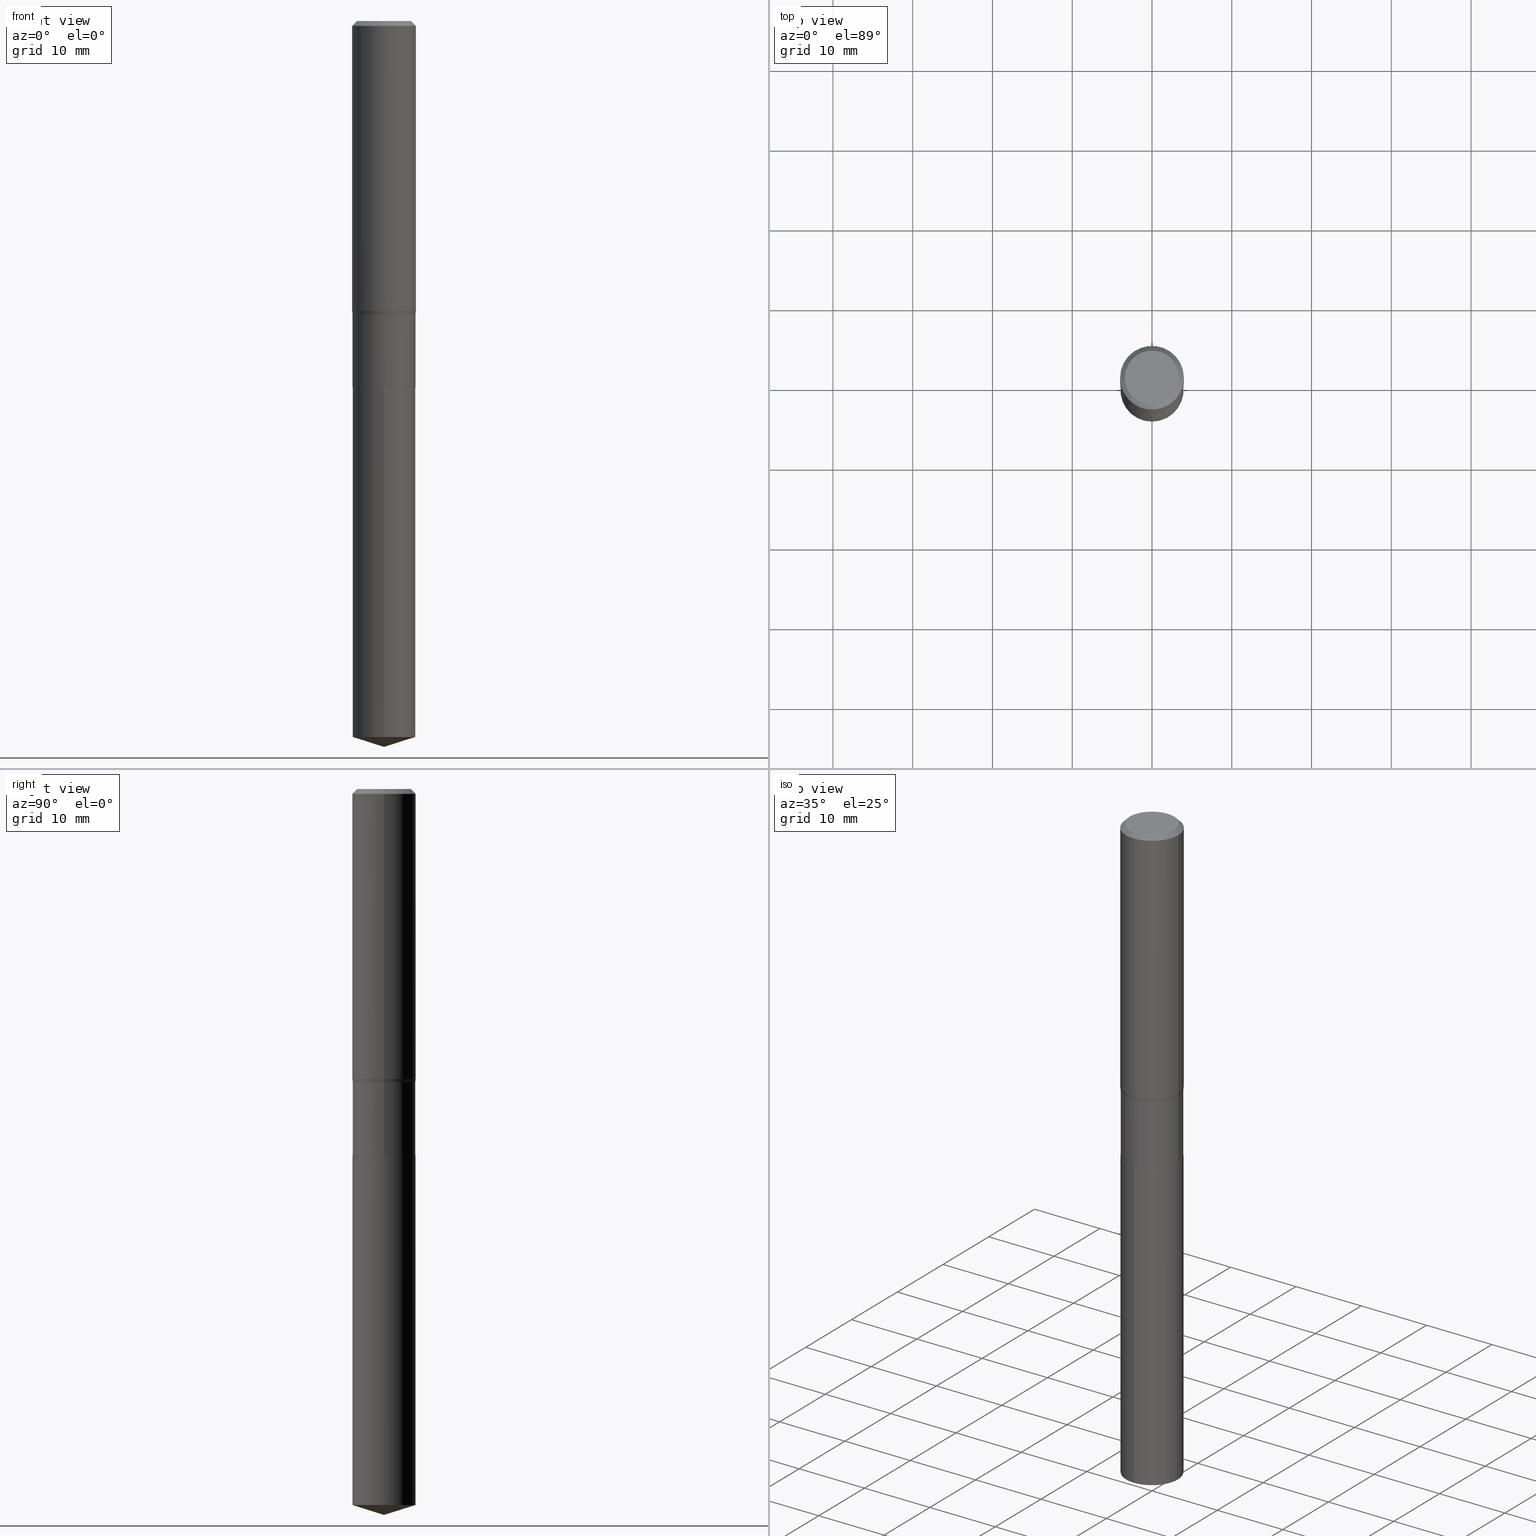
[diagram: canonical four-view strip — front | top / right | iso, engineering-drawing reading convention]
A machine part, canonical four-view strip (front | top / right | iso — engineering-drawing reading convention). The complete STEP part file that produces these views, byte-faithful:
ISO-10303-21;
HEADER;
FILE_DESCRIPTION (( 'STEP AP203' ),
    '1' );
FILE_NAME ('64152.STEP',
    '2024-04-19T15:22:26',
    ( '' ),
    ( '' ),
    'SwSTEP 2.0',
    'SolidWorks 2023',
    '' );
FILE_SCHEMA (( 'CONFIG_CONTROL_DESIGN' ));
ENDSEC;

DATA;
#1 = CALENDAR_DATE ( 2024, 19, 4 ) ;
#2 = CARTESIAN_POINT ( 'NONE',  ( 0.000000000000000000, 0.000000000000000000, 0.000000000000000000 ) ) ;
#3 = CIRCLE ( 'NONE', #179, 0.1554999999999999438 ) ;
#4 = CARTESIAN_POINT ( 'NONE',  ( -0.1575000000000000011, 1.017330375105417098E-15, -0.02362500000000014588 ) ) ;
#5 = EDGE_CURVE ( 'NONE', #63, #260, #127, .T. ) ;
#6 = DIRECTION ( 'NONE',  ( -2.445501115440306015E-29, 3.491435070150814715E-15, 1.000000000000000000 ) ) ;
#7 = DIRECTION ( 'NONE',  ( -0.7071067811865451302, 2.468850131082231817E-15, -0.7071067811865499042 ) ) ;
#8 = AXIS2_PLACEMENT_3D ( 'NONE', #112, #372, #257 ) ;
#9 = LINE ( 'NONE', #233, #261 ) ;
#10 = ADVANCED_FACE ( 'NONE', ( #329 ), #194, .F. ) ;
#11 = DIRECTION ( 'NONE',  ( 1.000000000000000000, -6.982962677686266711E-15, 4.876170806578254279E-29 ) ) ;
#12 = EDGE_LOOP ( 'NONE', ( #230, #385, #332 ) ) ;
#13 = DIRECTION ( 'NONE',  ( -2.445468806185136597E-29, 3.491481338843145583E-15, 1.000000000000000000 ) ) ;
#14 = ORIENTED_EDGE ( 'NONE', *, *, #235, .T. ) ;
#15 = CARTESIAN_POINT ( 'NONE',  ( -0.1554999999999999993, -4.579237665529685647E-15, -1.806600000000000428 ) ) ;
#16 = ORIENTED_EDGE ( 'NONE', *, *, #169, .F. ) ;
#17 = PLANE ( 'NONE',  #462 ) ;
#18 = EDGE_CURVE ( 'NONE', #226, #250, #66, .T. ) ;
#19 = EDGE_LOOP ( 'NONE', ( #285, #320, #395, #174 ) ) ;
#20 = LINE ( 'NONE', #400, #307 ) ;
#21 = ORIENTED_EDGE ( 'NONE', *, *, #58, .F. ) ;
#22 =( NAMED_UNIT ( * ) PLANE_ANGLE_UNIT ( ) SI_UNIT ( $, .RADIAN. ) );
#23 = CIRCLE ( 'NONE', #106, 0.1554999999999999438 ) ;
#24 = LOCAL_TIME ( 11, 22, 26.00000000000000000, #373 ) ;
#25 = APPROVAL ( #189, 'UNSPECIFIED' ) ;
#26 = ORIENTED_EDGE ( 'NONE', *, *, #354, .T. ) ;
#27 = APPROVAL_DATE_TIME ( #38, #466 ) ;
#28 = DIRECTION ( 'NONE',  ( 1.000000000000000000, -6.982962677686268288E-15, 0.000000000000000000 ) ) ;
#29 = MECHANICAL_CONTEXT ( 'NONE', #404, 'mechanical' ) ;
#30 = FACE_OUTER_BOUND ( 'NONE', #248, .T. ) ;
#31 = DIRECTION ( 'NONE',  ( 1.000000000000000000, -6.982962677686268288E-15, 0.000000000000000000 ) ) ;
#32 = PERSON_AND_ORGANIZATION_ROLE ( 'classification_officer' ) ;
#33 = FACE_OUTER_BOUND ( 'NONE', #490, .T. ) ;
#34 = LOCAL_TIME ( 11, 22, 26.00000000000000000, #255 ) ;
#35 = ORIENTED_EDGE ( 'NONE', *, *, #219, .F. ) ;
#36 = APPLICATION_PROTOCOL_DEFINITION ( 'international standard', 'config_control_design', 1994, #482 ) ;
#37 = CARTESIAN_POINT ( 'NONE',  ( 3.544462487684736704E-29, -5.060553052519254127E-15, -1.449399999999999800 ) ) ;
#38 = DATE_AND_TIME ( #153, #24 ) ;
#39 = DIRECTION ( 'NONE',  ( 1.000000000000000000, -6.982962677686269077E-15, 0.000000000000000000 ) ) ;
#40 = DIRECTION ( 'NONE',  ( -2.445501115440306015E-29, 3.491435070150814715E-15, 1.000000000000000000 ) ) ;
#41 = AXIS2_PLACEMENT_3D ( 'NONE', #204, #166, #464 ) ;
#42 = LOCAL_TIME ( 11, 22, 26.00000000000000000, #450 ) ;
#43 = ADVANCED_FACE ( 'NONE', ( #68 ), #220, .T. ) ;
#44 = CARTESIAN_POINT ( 'NONE',  ( 4.417983945254068051E-29, -6.307710186754027552E-15, -1.806600000000000428 ) ) ;
#45 = PRODUCT_RELATED_PRODUCT_CATEGORY ( 'detail', '', ( #234 ) ) ;
#46 = DIRECTION ( 'NONE',  ( -2.445468806185136597E-29, 3.491481338843145583E-15, 1.000000000000000000 ) ) ;
#47 = CARTESIAN_POINT ( 'NONE',  ( -1.085850696380127494E-15, -0.1555000000000122673, -3.533671038329317504 ) ) ;
#48 = EDGE_CURVE ( 'NONE', #260, #63, #362, .T. ) ;
#49 = AXIS2_PLACEMENT_3D ( 'NONE', #37, #223, #478 ) ;
#50 = APPROVAL_PERSON_ORGANIZATION ( #72, #25, #294 ) ;
#51 = CARTESIAN_POINT ( 'NONE',  ( -0.1554999999999999438, 1.104893954106955390E-15, -7.648944065346376022E-30 ) ) ;
#52 = ORIENTED_EDGE ( 'NONE', *, *, #322, .F. ) ;
#53 = CARTESIAN_POINT ( 'NONE',  ( 4.419206679657160853E-29, -6.309455927423449056E-15, -1.807100000000000151 ) ) ;
#54 = ORIENTED_EDGE ( 'NONE', *, *, #480, .T. ) ;
#55 = CARTESIAN_POINT ( 'NONE',  ( 0.1338749999999999940, -1.040731925365424925E-15, 4.101342130351393887E-18 ) ) ;
#56 = ORIENTED_EDGE ( 'NONE', *, *, #5, .F. ) ;
#57 = CONICAL_SURFACE ( 'NONE', #275, 124.8659371009138965, 1.265363707695889017 ) ;
#58 = EDGE_CURVE ( 'NONE', #260, #408, #292, .T. ) ;
#59 = DIRECTION ( 'NONE',  ( -1.000000000000000000, 7.105427357601001859E-15, 0.000000000000000000 ) ) ;
#60 = ORIENTED_EDGE ( 'NONE', *, *, #113, .F. ) ;
#61 = DIRECTION ( 'NONE',  ( -6.982962677686266711E-15, -1.000000000000000000, 3.500519750498737170E-15 ) ) ;
#62 = EDGE_CURVE ( 'NONE', #260, #312, #401, .T. ) ;
#63 = VERTEX_POINT ( 'NONE', #268 ) ;
#64 = DIRECTION ( 'NONE',  ( 2.445501115440305454E-29, -3.491435070150814715E-15, -1.000000000000000000 ) ) ;
#65 = EDGE_CURVE ( 'NONE', #243, #471, #270, .T. ) ;
#66 = LINE ( 'NONE', #288, #377 ) ;
#67 = CONICAL_SURFACE ( 'NONE', #186, 0.1549999999999999989, 0.7853981633975507526 ) ;
#68 = FACE_OUTER_BOUND ( 'NONE', #172, .T. ) ;
#69 = PERSON_AND_ORGANIZATION ( #139, #78 ) ;
#70 = CARTESIAN_POINT ( 'NONE',  ( -0.1554999999999999438, -4.579237665529685647E-15, -1.449399999999999800 ) ) ;
#71 = ORIENTED_EDGE ( 'NONE', *, *, #18, .F. ) ;
#72 = PERSON_AND_ORGANIZATION ( #139, #78 ) ;
#73 = DIRECTION ( 'NONE',  ( -6.982962677686266711E-15, -1.000000000000000000, 3.491481338843145583E-15 ) ) ;
#74 = EDGE_CURVE ( 'NONE', #388, #312, #325, .T. ) ;
#75 = PERSON_AND_ORGANIZATION ( #139, #78 ) ;
#76 = VECTOR ( 'NONE', #349, 39.37007874015748143 ) ;
#77 = DIRECTION ( 'NONE',  ( -6.982962677686266711E-15, -1.000000000000000000, 3.500519750498737170E-15 ) ) ;
#78 = ORGANIZATION ( 'UNSPECIFIED', 'UNSPECIFIED', '' ) ;
#79 = ORIENTED_EDGE ( 'NONE', *, *, #164, .T. ) ;
#80 = DATE_TIME_ROLE ( 'creation_date' ) ;
#81 = CARTESIAN_POINT ( 'NONE',  ( 0.000000000000000000, 0.000000000000000000, 0.000000000000000000 ) ) ;
#82 = EDGE_CURVE ( 'NONE', #226, #243, #90, .T. ) ;
#83 = ORIENTED_EDGE ( 'NONE', *, *, #264, .T. ) ;
#84 = MANIFOLD_SOLID_BREP ( 'Body-Move/Copy2[2]', #240 ) ;
#85 = CARTESIAN_POINT ( 'NONE',  ( 4.419206679657160853E-29, -6.309455927423449056E-15, -1.807100000000000151 ) ) ;
#86 = AXIS2_PLACEMENT_3D ( 'NONE', #425, #6, #126 ) ;
#87 = LINE ( 'NONE', #4, #485 ) ;
#88 = CARTESIAN_POINT ( 'NONE',  ( 0.1575000000000000011, -1.163014681279185964E-15, -0.02362500000000014588 ) ) ;
#89 = DIRECTION ( 'NONE',  ( -2.445468806185136597E-29, 3.491481338843145583E-15, 1.000000000000000000 ) ) ;
#90 = CIRCLE ( 'NONE', #443, 0.1554999999999999993 ) ;
#91 = VERTEX_POINT ( 'NONE', #298 ) ;
#92 = AXIS2_PLACEMENT_3D ( 'NONE', #173, #357, #441 ) ;
#93 = CARTESIAN_POINT ( 'NONE',  ( 0.1554999999999999438, -6.146403748899468790E-15, -1.449399999999999800 ) ) ;
#94 = EDGE_LOOP ( 'NONE', ( #211, #483 ) ) ;
#95 = ADVANCED_FACE ( 'NONE', ( #33 ), #187, .T. ) ;
#96 = ORIENTED_EDGE ( 'NONE', *, *, #62, .T. ) ;
#97 = DIRECTION ( 'NONE',  ( -6.982962677686265133E-15, -1.000000000000000000, 3.513630860018345064E-15 ) ) ;
#98 = ORIENTED_EDGE ( 'NONE', *, *, #336, .T. ) ;
#99 = AXIS2_PLACEMENT_3D ( 'NONE', #229, #158, #184 ) ;
#100 = CIRCLE ( 'NONE', #343, 0.1338749999999999940 ) ;
#101 =( LENGTH_UNIT ( ) NAMED_UNIT ( * ) SI_UNIT ( $, .METRE. ) );
#102 = ORIENTED_EDGE ( 'NONE', *, *, #58, .T. ) ;
#103 = EDGE_CURVE ( 'NONE', #312, #133, #23, .T. ) ;
#104 = DIRECTION ( 'NONE',  ( 1.000000000000000000, -6.982962677686263555E-15, 0.000000000000000000 ) ) ;
#105 = EDGE_LOOP ( 'NONE', ( #71, #168, #352, #16 ) ) ;
#106 = AXIS2_PLACEMENT_3D ( 'NONE', #190, #193, #39 ) ;
#107 = VECTOR ( 'NONE', #267, 39.37007874015748143 ) ;
#108 = SECURITY_CLASSIFICATION ( '', '', #221 ) ;
#109 = DIRECTION ( 'NONE',  ( -1.000000000000000000, 6.982962677686265922E-15, 0.000000000000000000 ) ) ;
#110 = CARTESIAN_POINT ( 'NONE',  ( 3.501544684315228678E-29, -4.999277803704066262E-15, -1.431850071225214682 ) ) ;
#111 = CALENDAR_DATE ( 2024, 19, 4 ) ;
#112 = CARTESIAN_POINT ( 'NONE',  ( 4.419206679657160853E-29, -6.309455927423449056E-15, -1.807100000000000151 ) ) ;
#113 = EDGE_CURVE ( 'NONE', #133, #312, #3, .T. ) ;
#114 = DIRECTION ( 'NONE',  ( -2.445468806185136597E-29, 3.491481338843145583E-15, 1.000000000000000000 ) ) ;
#115 = DIRECTION ( 'NONE',  ( 2.445468806185136597E-29, -3.491481338843145583E-15, -1.000000000000000000 ) ) ;
#116 = CARTESIAN_POINT ( 'NONE',  ( 0.1554999999999999438, -1.085850696380214268E-15, 7.582454886362678420E-30 ) ) ;
#117 = VERTEX_POINT ( 'NONE', #263 ) ;
#118 = DATE_TIME_ROLE ( 'classification_date' ) ;
#119 = VECTOR ( 'NONE', #346, 39.37007874015748854 ) ;
#120 = CARTESIAN_POINT ( 'NONE',  ( 3.544462487684736704E-29, -5.060553052519254127E-15, -1.449399999999999800 ) ) ;
#121 = COORDINATED_UNIVERSAL_TIME_OFFSET ( 5, 0, .BEHIND. ) ;
#122 = ADVANCED_FACE ( 'NONE', ( #457 ), #306, .T. ) ;
#123 = ADVANCED_BREP_SHAPE_REPRESENTATION ( '64152', ( #245, #84, #134 ), #415 ) ;
#124 = DIRECTION ( 'NONE',  ( 2.445468806185136597E-29, -3.491481338843145583E-15, -1.000000000000000000 ) ) ;
#125 = VERTEX_POINT ( 'NONE', #340 ) ;
#126 = DIRECTION ( 'NONE',  ( -6.982962677686265133E-15, -1.000000000000000000, 3.513630860018345064E-15 ) ) ;
#127 = CIRCLE ( 'NONE', #291, 0.1575000000000001399 ) ;
#128 = DIRECTION ( 'NONE',  ( 1.000000000000000000, -6.982962677686265922E-15, 4.876176775795935793E-29 ) ) ;
#129 = LINE ( 'NONE', #51, #76 ) ;
#130 = EDGE_LOOP ( 'NONE', ( #244, #253 ) ) ;
#131 = LINE ( 'NONE', #167, #119 ) ;
#132 = AXIS2_PLACEMENT_3D ( 'NONE', #492, #124, #344 ) ;
#133 = VERTEX_POINT ( 'NONE', #70 ) ;
#134 = AXIS2_PLACEMENT_3D ( 'NONE', #405, #262, #185 ) ;
#135 = APPLICATION_PROTOCOL_DEFINITION ( 'international standard', 'config_control_design', 1994, #404 ) ;
#136 = EDGE_CURVE ( 'NONE', #117, #408, #326, .T. ) ;
#137 = ORIENTED_EDGE ( 'NONE', *, *, #65, .F. ) ;
#138 = LENGTH_MEASURE_WITH_UNIT ( LENGTH_MEASURE( 0.02539999999999999897 ), #101 );
#139 = PERSON ( 'UNSPECIFIED', 'UNSPECIFIED', 'UNSPECIFIED', ('UNSPECIFIED'), ('UNSPECIFIED'), ('UNSPECIFIED') ) ;
#140 = ORIENTED_EDGE ( 'NONE', *, *, #136, .T. ) ;
#141 = DIRECTION ( 'NONE',  ( 2.438088387897960049E-29, -3.491481338843145188E-15, -1.000000000000000000 ) ) ;
#142 = ORIENTED_EDGE ( 'NONE', *, *, #62, .F. ) ;
#143 = CIRCLE ( 'NONE', #413, 0.1554999999999999993 ) ;
#144 = ORIENTED_EDGE ( 'NONE', *, *, #82, .F. ) ;
#145 = ADVANCED_FACE ( 'NONE', ( #376 ), #57, .T. ) ;
#146 = DIRECTION ( 'NONE',  ( 1.000000000000000000, -6.982962677686269077E-15, 0.000000000000000000 ) ) ;
#147 = CARTESIAN_POINT ( 'NONE',  ( 3.501544684315228678E-29, -4.999277803704066262E-15, -1.431850071225214682 ) ) ;
#148 = DESIGN_CONTEXT ( 'detailed design', #482, 'design' ) ;
#149 = DATE_AND_TIME ( #338, #42 ) ;
#150 = AXIS2_PLACEMENT_3D ( 'NONE', #177, #283, #440 ) ;
#151 = ADVANCED_FACE ( 'NONE', ( #195 ), #445, .T. ) ;
#152 = CYLINDRICAL_SURFACE ( 'NONE', #99, 0.1554999999999999993 ) ;
#153 = CALENDAR_DATE ( 2024, 19, 4 ) ;
#154 = CARTESIAN_POINT ( 'NONE',  ( 5.777420054612421104E-31, -8.248624663016984002E-17, -0.02362500000000014588 ) ) ;
#155 = ADVANCED_FACE ( 'NONE', ( #30 ), #152, .T. ) ;
#156 = APPROVAL_ROLE ( '' ) ;
#157 = AXIS2_PLACEMENT_3D ( 'NONE', #290, #115, #109 ) ;
#158 = DIRECTION ( 'NONE',  ( -2.445501115440306015E-29, 3.491435070150814715E-15, 1.000000000000000000 ) ) ;
#159 = CIRCLE ( 'NONE', #92, 0.1575000000000000011 ) ;
#160 = PLANE ( 'NONE',  #315 ) ;
#161 = DIRECTION ( 'NONE',  ( -2.445468806185136597E-29, 3.491481338843145583E-15, 1.000000000000000000 ) ) ;
#162 = CARTESIAN_POINT ( 'NONE',  ( -1.002970424325033577E-46, 1.431975951230896486E-32, 4.101342130344485961E-18 ) ) ;
#163 = CIRCLE ( 'NONE', #8, 0.1554999999999999993 ) ;
#164 = EDGE_CURVE ( 'NONE', #63, #117, #293, .T. ) ;
#165 = AXIS2_PLACEMENT_3D ( 'NONE', #396, #181, #61 ) ;
#166 = DIRECTION ( 'NONE',  ( -2.445468806185136597E-29, 3.491481338843145583E-15, 1.000000000000000000 ) ) ;
#167 = CARTESIAN_POINT ( 'NONE',  ( 8.761380074177950301E-29, -1.250893165013714506E-14, -3.582699999999999996 ) ) ;
#168 = ORIENTED_EDGE ( 'NONE', *, *, #82, .T. ) ;
#169 = EDGE_CURVE ( 'NONE', #250, #471, #163, .T. ) ;
#170 = PLANE ( 'NONE',  #210 ) ;
#171 = AXIS2_PLACEMENT_3D ( 'NONE', #258, #73, #380 ) ;
#172 = EDGE_LOOP ( 'NONE', ( #277, #79, #488, #21 ) ) ;
#173 = CARTESIAN_POINT ( 'NONE',  ( 5.777420054612421104E-31, -8.248624663016984002E-17, -0.02362500000000014588 ) ) ;
#174 = ORIENTED_EDGE ( 'NONE', *, *, #235, .F. ) ;
#175 = DIRECTION ( 'NONE',  ( -0.7071067811866199593, 7.493145998870616062E-15, 0.7071067811864750752 ) ) ;
#176 = ORIENTED_EDGE ( 'NONE', *, *, #74, .T. ) ;
#177 = CARTESIAN_POINT ( 'NONE',  ( 4.419206679657160853E-29, -6.309455927423449056E-15, -1.807100000000000151 ) ) ;
#178 = EDGE_LOOP ( 'NONE', ( #323, #273, #144 ) ) ;
#179 = AXIS2_PLACEMENT_3D ( 'NONE', #120, #374, #146 ) ;
#180 = CIRCLE ( 'NONE', #371, 0.07799999999999995826 ) ;
#181 = DIRECTION ( 'NONE',  ( -2.445501115440306015E-29, 3.491435070150814715E-15, 1.000000000000000000 ) ) ;
#182 = CARTESIAN_POINT ( 'NONE',  ( 0.000000000000000000, 0.000000000000000000, 0.000000000000000000 ) ) ;
#183 = ADVANCED_FACE ( 'NONE', ( #410 ), #209, .T. ) ;
#184 = DIRECTION ( 'NONE',  ( -6.982962677686265133E-15, -1.000000000000000000, 3.513630860018345064E-15 ) ) ;
#185 = DIRECTION ( 'NONE',  ( 1.000000000000000000, 0.000000000000000000, 0.000000000000000000 ) ) ;
#186 = AXIS2_PLACEMENT_3D ( 'NONE', #435, #13, #104 ) ;
#187 = CYLINDRICAL_SURFACE ( 'NONE', #421, 0.1575000000000000566 ) ;
#188 = EDGE_LOOP ( 'NONE', ( #206, #215, #399, #279 ) ) ;
#189 = APPROVAL_STATUS ( 'not_yet_approved' ) ;
#190 = CARTESIAN_POINT ( 'NONE',  ( 3.544462487684736704E-29, -5.060553052519254127E-15, -1.449399999999999800 ) ) ;
#191 = PRODUCT_DEFINITION ( 'UNKNOWN', '', #316, #148 ) ;
#192 = PERSON_AND_ORGANIZATION_ROLE ( 'design_supplier' ) ;
#193 = DIRECTION ( 'NONE',  ( -2.445468806185136597E-29, 3.491481338843145583E-15, 1.000000000000000000 ) ) ;
#194 = TOROIDAL_SURFACE ( 'NONE', #49, 0.2334999999999999021, 0.07799999999999995826 ) ;
#195 = FACE_OUTER_BOUND ( 'NONE', #188, .T. ) ;
#196 = AXIS2_PLACEMENT_3D ( 'NONE', #214, #433, #97 ) ;
#197 = DIRECTION ( 'NONE',  ( -2.445468806185136877E-29, 3.491481338843145188E-15, 1.000000000000000000 ) ) ;
#198 = CARTESIAN_POINT ( 'NONE',  ( 1.104893954107041573E-15, 0.1554999999999876203, -3.533671038329318836 ) ) ;
#199 = ADVANCED_FACE ( 'NONE', ( #274 ), #254, .F. ) ;
#200 = CARTESIAN_POINT ( 'NONE',  ( 4.419206679657160853E-29, -6.309455927423449056E-15, -1.807100000000000151 ) ) ;
#201 = DIRECTION ( 'NONE',  ( -6.982962677686265133E-15, -1.000000000000000000, 3.513630860018345064E-15 ) ) ;
#202 = CIRCLE ( 'NONE', #476, 0.1549999999999999989 ) ;
#203 = CONICAL_SURFACE ( 'NONE', #301, 0.1549999999999999989, 0.7853981633975507526 ) ;
#204 = CARTESIAN_POINT ( 'NONE',  ( 3.544462487684736704E-29, -5.060553052519254127E-15, -1.449399999999999800 ) ) ;
#205 = CC_DESIGN_PERSON_AND_ORGANIZATION_ASSIGNMENT ( #75, #192, ( #316 ) ) ;
#206 = ORIENTED_EDGE ( 'NONE', *, *, #252, .T. ) ;
#207 = ORIENTED_EDGE ( 'NONE', *, *, #460, .F. ) ;
#208 = FACE_OUTER_BOUND ( 'NONE', #105, .T. ) ;
#209 = CONICAL_SURFACE ( 'NONE', #132, 0.1575000000000000011, 0.7853981633974449483 ) ;
#210 = AXIS2_PLACEMENT_3D ( 'NONE', #216, #141, #359 ) ;
#211 = ORIENTED_EDGE ( 'NONE', *, *, #460, .T. ) ;
#212 = CARTESIAN_POINT ( 'NONE',  ( 0.1554999999999999993, -7.393560883134242215E-15, -1.806600000000000428 ) ) ;
#213 = ORIENTED_EDGE ( 'NONE', *, *, #336, .F. ) ;
#214 = CARTESIAN_POINT ( 'NONE',  ( 4.419206679657160853E-29, -6.309455927423449056E-15, -1.807100000000000151 ) ) ;
#215 = ORIENTED_EDGE ( 'NONE', *, *, #219, .T. ) ;
#216 = CARTESIAN_POINT ( 'NONE',  ( -5.014852121625167883E-47, 7.159879756154482429E-33, 2.050671065172242981E-18 ) ) ;
#217 = DIRECTION ( 'NONE',  ( -2.445501115440305735E-29, 3.491435070150814715E-15, 1.000000000000000000 ) ) ;
#218 = LOCAL_TIME ( 11, 22, 26.00000000000000000, #121 ) ;
#219 = EDGE_CURVE ( 'NONE', #468, #133, #129, .T. ) ;
#220 = CYLINDRICAL_SURFACE ( 'NONE', #393, 0.1575000000000000566 ) ;
#221 = SECURITY_CLASSIFICATION_LEVEL ( 'unclassified' ) ;
#222 = DIRECTION ( 'NONE',  ( -2.445468806185136597E-29, 3.491481338843145583E-15, 1.000000000000000000 ) ) ;
#223 = DIRECTION ( 'NONE',  ( -2.445468806185136597E-29, 3.491481338843145583E-15, 1.000000000000000000 ) ) ;
#224 = PERSON_AND_ORGANIZATION ( #139, #78 ) ;
#225 = DIRECTION ( 'NONE',  ( -2.445501115440306015E-29, 3.491435070150814715E-15, 1.000000000000000000 ) ) ;
#226 = VERTEX_POINT ( 'NONE', #198 ) ;
#227 = VECTOR ( 'NONE', #350, 39.37007874015748143 ) ;
#228 = APPROVAL_DATE_TIME ( #409, #296 ) ;
#229 = CARTESIAN_POINT ( 'NONE',  ( 4.419206679657160853E-29, -6.309455927423449056E-15, -1.807100000000000151 ) ) ;
#230 = ORIENTED_EDGE ( 'NONE', *, *, #313, .F. ) ;
#231 = PERSON_AND_ORGANIZATION ( #139, #78 ) ;
#232 = APPROVAL_PERSON_ORGANIZATION ( #339, #296, #156 ) ;
#233 = CARTESIAN_POINT ( 'NONE',  ( 8.761497870241549920E-29, -1.250876442582932409E-14, -3.582699999999999996 ) ) ;
#234 = PRODUCT ( '64152', '64152', '', ( #29 ) ) ;
#235 = EDGE_CURVE ( 'NONE', #353, #117, #87, .T. ) ;
#236 = DIRECTION ( 'NONE',  ( -2.445501115440306015E-29, 3.491435070150814715E-15, 1.000000000000000000 ) ) ;
#237 = CARTESIAN_POINT ( 'NONE',  ( 4.419206679657160853E-29, -6.309455927423449056E-15, -1.807100000000000151 ) ) ;
#238 = DIRECTION ( 'NONE',  ( 1.000000000000000000, -6.982962677686266711E-15, 0.000000000000000000 ) ) ;
#239 = EDGE_CURVE ( 'NONE', #432, #353, #266, .T. ) ;
#240 = CLOSED_SHELL ( 'NONE', ( #375, #183, #43, #10, #151, #319, #199, #95, #122, #453, #249, #351 ) ) ;
#241 = ORIENTED_EDGE ( 'NONE', *, *, #103, .T. ) ;
#242 = DIRECTION ( 'NONE',  ( 0.7071067811866199593, -2.468850131083015945E-15, 0.7071067811864750752 ) ) ;
#243 = VERTEX_POINT ( 'NONE', #47 ) ;
#244 = ORIENTED_EDGE ( 'NONE', *, *, #480, .F. ) ;
#245 = MANIFOLD_SOLID_BREP ( 'Body-Move/Copy2[1]', #299 ) ;
#246 = FACE_OUTER_BOUND ( 'NONE', #427, .T. ) ;
#247 = VECTOR ( 'NONE', #197, 39.37007874015748143 ) ;
#248 = EDGE_LOOP ( 'NONE', ( #282, #474, #213, #137 ) ) ;
#249 = ADVANCED_FACE ( 'NONE', ( #384 ), #160, .F. ) ;
#250 = VERTEX_POINT ( 'NONE', #305 ) ;
#251 = DIRECTION ( 'NONE',  ( -2.445468806185136597E-29, 3.491481338843145583E-15, 1.000000000000000000 ) ) ;
#252 = EDGE_CURVE ( 'NONE', #388, #468, #143, .T. ) ;
#253 = ORIENTED_EDGE ( 'NONE', *, *, #264, .F. ) ;
#254 = TOROIDAL_SURFACE ( 'NONE', #41, 0.2334999999999999021, 0.07799999999999995826 ) ;
#255 = COORDINATED_UNIVERSAL_TIME_OFFSET ( 5, 0, .BEHIND. ) ;
#256 = ORIENTED_EDGE ( 'NONE', *, *, #136, .F. ) ;
#257 = DIRECTION ( 'NONE',  ( -6.982962677686265133E-15, -1.000000000000000000, 3.513630860018345064E-15 ) ) ;
#258 = CARTESIAN_POINT ( 'NONE',  ( 0.2334999999999999021, -6.691074837758996836E-15, -1.449399999999999800 ) ) ;
#259 = PERSON_AND_ORGANIZATION_ROLE ( 'creator' ) ;
#260 = VERTEX_POINT ( 'NONE', #420 ) ;
#261 = VECTOR ( 'NONE', #430, 39.37007874015748854 ) ;
#262 = DIRECTION ( 'NONE',  ( 0.000000000000000000, 0.000000000000000000, 1.000000000000000000 ) ) ;
#263 = CARTESIAN_POINT ( 'NONE',  ( -0.1575000000000000011, -1.421777216344959831E-15, -0.02362500000000014588 ) ) ;
#264 = EDGE_CURVE ( 'NONE', #125, #284, #202, .T. ) ;
#265 = ORIENTED_EDGE ( 'NONE', *, *, #164, .F. ) ;
#266 = CIRCLE ( 'NONE', #347, 0.1338749999999999940 ) ;
#267 = DIRECTION ( 'NONE',  ( 0.7071067811865451302, -7.319954787623248157E-15, -0.7071067811865499042 ) ) ;
#268 = CARTESIAN_POINT ( 'NONE',  ( -0.1575000000000001399, -3.880172994881907080E-15, -1.431850071225214682 ) ) ;
#269 = CARTESIAN_POINT ( 'NONE',  ( 0.1549999999999999989, -7.391815142464819923E-15, -1.807100000000000151 ) ) ;
#270 = LINE ( 'NONE', #418, #227 ) ;
#271 = EDGE_CURVE ( 'NONE', #91, #226, #9, .T. ) ;
#272 = LINE ( 'NONE', #269, #383 ) ;
#273 = ORIENTED_EDGE ( 'NONE', *, *, #313, .T. ) ;
#274 = FACE_OUTER_BOUND ( 'NONE', #449, .T. ) ;
#275 = AXIS2_PLACEMENT_3D ( 'NONE', #489, #40, #77 ) ;
#276 = CIRCLE ( 'NONE', #394, 0.1554999999999999993 ) ;
#277 = ORIENTED_EDGE ( 'NONE', *, *, #48, .T. ) ;
#278 = CARTESIAN_POINT ( 'NONE',  ( -0.2334999999999999021, -3.401435764519421086E-15, -1.449399999999999800 ) ) ;
#279 = ORIENTED_EDGE ( 'NONE', *, *, #74, .F. ) ;
#280 = DIRECTION ( 'NONE',  ( 7.105427357601001859E-15, 1.000000000000000000, -3.491481338843145583E-15 ) ) ;
#281 = CC_DESIGN_PERSON_AND_ORGANIZATION_ASSIGNMENT ( #69, #416, ( #234 ) ) ;
#282 = ORIENTED_EDGE ( 'NONE', *, *, #341, .T. ) ;
#283 = DIRECTION ( 'NONE',  ( -2.445468806185136597E-29, 3.491481338843145583E-15, 1.000000000000000000 ) ) ;
#284 = VERTEX_POINT ( 'NONE', #310 ) ;
#285 = ORIENTED_EDGE ( 'NONE', *, *, #239, .F. ) ;
#286 = CC_DESIGN_PERSON_AND_ORGANIZATION_ASSIGNMENT ( #442, #412, ( #316 ) ) ;
#287 = FACE_OUTER_BOUND ( 'NONE', #178, .T. ) ;
#288 = CARTESIAN_POINT ( 'NONE',  ( 1.104893954106999566E-15, 0.1554999999999936711, -1.807100000000000817 ) ) ;
#289 = APPROVAL_STATUS ( 'not_yet_approved' ) ;
#290 = CARTESIAN_POINT ( 'NONE',  ( 5.777420054612421104E-31, -8.248624663016984002E-17, -0.02362500000000014588 ) ) ;
#291 = AXIS2_PLACEMENT_3D ( 'NONE', #110, #479, #28 ) ;
#292 = LINE ( 'NONE', #369, #461 ) ;
#293 = LINE ( 'NONE', #295, #342 ) ;
#294 = APPROVAL_ROLE ( '' ) ;
#295 = CARTESIAN_POINT ( 'NONE',  ( -0.1575000000000000566, 1.119104808822158195E-15, -7.747322767151479787E-30 ) ) ;
#296 = APPROVAL ( #367, 'UNSPECIFIED' ) ;
#297 = COORDINATED_UNIVERSAL_TIME_OFFSET ( 5, 0, .BEHIND. ) ;
#298 = CARTESIAN_POINT ( 'NONE',  ( 8.761496846287982597E-29, -1.250876442582932251E-14, -3.582699999999999996 ) ) ;
#299 = CLOSED_SHELL ( 'NONE', ( #155, #145, #360, #424, #370 ) ) ;
#300 = SHAPE_DEFINITION_REPRESENTATION ( #311, #123 ) ;
#301 = AXIS2_PLACEMENT_3D ( 'NONE', #53, #161, #308 ) ;
#302 = CARTESIAN_POINT ( 'NONE',  ( 8.641538079778433865E-29, -1.233766660175313429E-14, -3.533671038329317948 ) ) ;
#303 = EDGE_CURVE ( 'NONE', #432, #408, #423, .T. ) ;
#304 = DIRECTION ( 'NONE',  ( 1.000000000000000000, -6.982962677686266711E-15, 0.000000000000000000 ) ) ;
#305 = CARTESIAN_POINT ( 'NONE',  ( 1.104893954107042165E-15, 0.1554999999999936711, -1.807100000000000817 ) ) ;
#306 = CONICAL_SURFACE ( 'NONE', #157, 0.1575000000000000011, 0.7853981633974449483 ) ;
#307 = VECTOR ( 'NONE', #175, 39.37007874015748143 ) ;
#308 = DIRECTION ( 'NONE',  ( 1.000000000000000000, -6.982962677686263555E-15, 0.000000000000000000 ) ) ;
#309 = DIRECTION ( 'NONE',  ( -2.445468806185136597E-29, 3.491481338843145583E-15, 1.000000000000000000 ) ) ;
#310 = CARTESIAN_POINT ( 'NONE',  ( 0.1549999999999999989, -7.391815142464819923E-15, -1.807100000000000151 ) ) ;
#311 = PRODUCT_DEFINITION_SHAPE ( 'NONE', 'NONE',  #191 ) ;
#312 = VERTEX_POINT ( 'NONE', #93 ) ;
#313 = EDGE_CURVE ( 'NONE', #91, #243, #131, .T. ) ;
#314 = CARTESIAN_POINT ( 'NONE',  ( -1.002970424325033577E-46, 1.431975951230896486E-32, 4.101342130344485961E-18 ) ) ;
#315 = AXIS2_PLACEMENT_3D ( 'NONE', #85, #381, #128 ) ;
#316 = PRODUCT_DEFINITION_FORMATION_WITH_SPECIFIED_SOURCE ( 'ANY', '', #234, .NOT_KNOWN. ) ;
#317 = ORIENTED_EDGE ( 'NONE', *, *, #48, .F. ) ;
#318 = FACE_OUTER_BOUND ( 'NONE', #94, .T. ) ;
#319 = ADVANCED_FACE ( 'NONE', ( #463 ), #467, .T. ) ;
#320 = ORIENTED_EDGE ( 'NONE', *, *, #303, .T. ) ;
#321 = DIRECTION ( 'NONE',  ( 1.000000000000000000, -6.982962677686266711E-15, 4.876170806578254279E-29 ) ) ;
#322 = EDGE_CURVE ( 'NONE', #284, #388, #272, .T. ) ;
#323 = ORIENTED_EDGE ( 'NONE', *, *, #271, .F. ) ;
#324 =( CONVERSION_BASED_UNIT ( 'INCH', #138 ) LENGTH_UNIT ( ) NAMED_UNIT ( #451 ) );
#325 = LINE ( 'NONE', #116, #247 ) ;
#326 = CIRCLE ( 'NONE', #428, 0.1575000000000000011 ) ;
#327 = APPROVAL_PERSON_ORGANIZATION ( #365, #466, #491 ) ;
#328 = CC_DESIGN_DATE_AND_TIME_ASSIGNMENT ( #149, #80, ( #191 ) ) ;
#329 = FACE_OUTER_BOUND ( 'NONE', #397, .T. ) ;
#330 = DIRECTION ( 'NONE',  ( 6.982962677686265922E-15, 1.000000000000000000, -3.491435070150814715E-15 ) ) ;
#331 = ORIENTED_EDGE ( 'NONE', *, *, #169, .T. ) ;
#332 = ORIENTED_EDGE ( 'NONE', *, *, #341, .F. ) ;
#333 = UNCERTAINTY_MEASURE_WITH_UNIT (LENGTH_MEASURE( 1.000000000000000082E-05 ), #324, 'distance_accuracy_value', 'NONE');
#334 = DIRECTION ( 'NONE',  ( -2.445468806185136877E-29, 3.491481338843145188E-15, 1.000000000000000000 ) ) ;
#335 = DATE_AND_TIME ( #111, #34 ) ;
#336 = EDGE_CURVE ( 'NONE', #471, #250, #363, .T. ) ;
#337 = DIRECTION ( 'NONE',  ( -2.445468806185136597E-29, 3.491481338843145583E-15, 1.000000000000000000 ) ) ;
#338 = CALENDAR_DATE ( 2024, 19, 4 ) ;
#339 = PERSON_AND_ORGANIZATION ( #139, #78 ) ;
#340 = CARTESIAN_POINT ( 'NONE',  ( -0.1549999999999999989, -5.205465459821182378E-15, -1.807100000000000151 ) ) ;
#341 = EDGE_CURVE ( 'NONE', #243, #226, #422, .T. ) ;
#342 = VECTOR ( 'NONE', #448, 39.37007874015748143 ) ;
#343 = AXIS2_PLACEMENT_3D ( 'NONE', #314, #251, #321 ) ;
#344 = DIRECTION ( 'NONE',  ( -1.000000000000000000, 6.982962677686265922E-15, 0.000000000000000000 ) ) ;
#345 = DIRECTION ( 'NONE',  ( 1.000000000000000000, -6.982962677686263555E-15, 0.000000000000000000 ) ) ;
#346 = DIRECTION ( 'NONE',  ( -6.659769872151625778E-15, -0.9537169507482258224, 0.3007057995042763388 ) ) ;
#347 = AXIS2_PLACEMENT_3D ( 'NONE', #162, #46, #11 ) ;
#348 = CARTESIAN_POINT ( 'NONE',  ( 4.417983945254068051E-29, -6.307710186754027552E-15, -1.806600000000000428 ) ) ;
#349 = DIRECTION ( 'NONE',  ( -2.445468806185136877E-29, 3.491481338843145188E-15, 1.000000000000000000 ) ) ;
#350 = DIRECTION ( 'NONE',  ( -2.445501115440305735E-29, 3.491435070150814715E-15, 1.000000000000000000 ) ) ;
#351 = ADVANCED_FACE ( 'NONE', ( #386 ), #203, .T. ) ;
#352 = ORIENTED_EDGE ( 'NONE', *, *, #65, .T. ) ;
#353 = VERTEX_POINT ( 'NONE', #382 ) ;
#354 = EDGE_CURVE ( 'NONE', #468, #388, #276, .T. ) ;
#355 = AXIS2_PLACEMENT_3D ( 'NONE', #147, #114, #31 ) ;
#356 = ORIENTED_EDGE ( 'NONE', *, *, #113, .T. ) ;
#357 = DIRECTION ( 'NONE',  ( -2.445468806185136597E-29, 3.491481338843145583E-15, 1.000000000000000000 ) ) ;
#358 = EDGE_LOOP ( 'NONE', ( #98, #331 ) ) ;
#359 = DIRECTION ( 'NONE',  ( -1.000000000000000000, 6.982962677686265922E-15, -4.876176775795935793E-29 ) ) ;
#360 = ADVANCED_FACE ( 'NONE', ( #287 ), #446, .T. ) ;
#361 = ORIENTED_EDGE ( 'NONE', *, *, #387, .F. ) ;
#362 = CIRCLE ( 'NONE', #355, 0.1575000000000001399 ) ;
#363 = CIRCLE ( 'NONE', #438, 0.1554999999999999993 ) ;
#364 = EDGE_LOOP ( 'NONE', ( #35, #26, #176, #60 ) ) ;
#365 = PERSON_AND_ORGANIZATION ( #139, #78 ) ;
#366 = DIRECTION ( 'NONE',  ( 1.000000000000000000, -6.982962677686267499E-15, 4.876176775795936353E-29 ) ) ;
#367 = APPROVAL_STATUS ( 'not_yet_approved' ) ;
#368 = DIRECTION ( 'NONE',  ( 1.000000000000000000, -6.982962677686268288E-15, 4.876176775795936353E-29 ) ) ;
#369 = CARTESIAN_POINT ( 'NONE',  ( 0.1575000000000000566, -1.099816621735587480E-15, 7.679978421878602237E-30 ) ) ;
#370 = ADVANCED_FACE ( 'NONE', ( #398 ), #17, .F. ) ;
#371 = AXIS2_PLACEMENT_3D ( 'NONE', #278, #280, #59 ) ;
#372 = DIRECTION ( 'NONE',  ( -2.445501115440306015E-29, 3.491435070150814715E-15, 1.000000000000000000 ) ) ;
#373 = COORDINATED_UNIVERSAL_TIME_OFFSET ( 5, 0, .BEHIND. ) ;
#374 = DIRECTION ( 'NONE',  ( -2.445468806185136597E-29, 3.491481338843145583E-15, 1.000000000000000000 ) ) ;
#375 = ADVANCED_FACE ( 'NONE', ( #246 ), #67, .T. ) ;
#376 = FACE_OUTER_BOUND ( 'NONE', #12, .T. ) ;
#377 = VECTOR ( 'NONE', #217, 39.37007874015748143 ) ;
#378 = CC_DESIGN_APPROVAL ( #296, ( #108 ) ) ;
#379 = DIRECTION ( 'NONE',  ( 1.000000000000000000, -6.982962677686268288E-15, 4.876176775795936353E-29 ) ) ;
#380 = DIRECTION ( 'NONE',  ( 1.000000000000000000, -6.982962677686261977E-15, 0.000000000000000000 ) ) ;
#381 = DIRECTION ( 'NONE',  ( -2.438088387897960049E-29, 3.491481338843145188E-15, 1.000000000000000000 ) ) ;
#382 = CARTESIAN_POINT ( 'NONE',  ( -0.1338749999999999940, 9.760872517903331886E-16, 4.101342130337804525E-18 ) ) ;
#383 = VECTOR ( 'NONE', #242, 39.37007874015748143 ) ;
#384 = FACE_OUTER_BOUND ( 'NONE', #130, .T. ) ;
#385 = ORIENTED_EDGE ( 'NONE', *, *, #271, .T. ) ;
#386 = FACE_OUTER_BOUND ( 'NONE', #390, .T. ) ;
#387 = EDGE_CURVE ( 'NONE', #63, #133, #180, .T. ) ;
#388 = VERTEX_POINT ( 'NONE', #212 ) ;
#389 = CARTESIAN_POINT ( 'NONE',  ( 0.1575000000000000011, -1.182302868365756679E-15, -0.02362500000000014588 ) ) ;
#390 = EDGE_LOOP ( 'NONE', ( #447, #83, #465, #414 ) ) ;
#391 = CC_DESIGN_DATE_AND_TIME_ASSIGNMENT ( #454, #118, ( #108 ) ) ;
#392 = CARTESIAN_POINT ( 'NONE',  ( 4.419206679657160853E-29, -6.309455927423449056E-15, -1.807100000000000151 ) ) ;
#393 = AXIS2_PLACEMENT_3D ( 'NONE', #182, #411, #366 ) ;
#394 = AXIS2_PLACEMENT_3D ( 'NONE', #348, #309, #238 ) ;
#395 = ORIENTED_EDGE ( 'NONE', *, *, #407, .T. ) ;
#396 = CARTESIAN_POINT ( 'NONE',  ( -8.751813301379483585E-28, 1.249492255900016117E-13, 35.78737874015747877 ) ) ;
#397 = EDGE_LOOP ( 'NONE', ( #56, #403, #356, #142 ) ) ;
#398 = FACE_OUTER_BOUND ( 'NONE', #358, .T. ) ;
#399 = ORIENTED_EDGE ( 'NONE', *, *, #103, .F. ) ;
#400 = CARTESIAN_POINT ( 'NONE',  ( -0.1549999999999999989, -5.208114686995293579E-15, -1.807100000000000151 ) ) ;
#401 = CIRCLE ( 'NONE', #171, 0.07799999999999995826 ) ;
#402 = CC_DESIGN_APPROVAL ( #25, ( #191 ) ) ;
#403 = ORIENTED_EDGE ( 'NONE', *, *, #387, .T. ) ;
#404 = APPLICATION_CONTEXT ( 'configuration controlled 3d designs of mechanical parts and assemblies' ) ;
#405 = CARTESIAN_POINT ( 'NONE',  ( 0.000000000000000000, 0.000000000000000000, 0.000000000000000000 ) ) ;
#406 = DIRECTION ( 'NONE',  ( 1.000000000000000000, -6.982962677686267499E-15, 4.876176775795936353E-29 ) ) ;
#407 = EDGE_CURVE ( 'NONE', #408, #117, #159, .T. ) ;
#408 = VERTEX_POINT ( 'NONE', #389 ) ;
#409 = DATE_AND_TIME ( #456, #218 ) ;
#410 = FACE_OUTER_BOUND ( 'NONE', #19, .T. ) ;
#411 = DIRECTION ( 'NONE',  ( -2.445468806185136597E-29, 3.491481338843145583E-15, 1.000000000000000000 ) ) ;
#412 = PERSON_AND_ORGANIZATION_ROLE ( 'creator' ) ;
#413 = AXIS2_PLACEMENT_3D ( 'NONE', #44, #426, #304 ) ;
#414 = ORIENTED_EDGE ( 'NONE', *, *, #354, .F. ) ;
#415 =( GEOMETRIC_REPRESENTATION_CONTEXT ( 3 ) GLOBAL_UNCERTAINTY_ASSIGNED_CONTEXT ( ( #333 ) ) GLOBAL_UNIT_ASSIGNED_CONTEXT ( ( #324, #22, #475 ) ) REPRESENTATION_CONTEXT ( 'NONE', 'WORKASPACE' ) );
#416 = PERSON_AND_ORGANIZATION_ROLE ( 'design_owner' ) ;
#417 = CC_DESIGN_PERSON_AND_ORGANIZATION_ASSIGNMENT ( #224, #259, ( #191 ) ) ;
#418 = CARTESIAN_POINT ( 'NONE',  ( -1.085850696380170092E-15, -0.1555000000000062998, -1.807099999999999707 ) ) ;
#419 = DIRECTION ( 'NONE',  ( 1.000000000000000000, -6.982962677686265922E-15, 0.000000000000000000 ) ) ;
#420 = CARTESIAN_POINT ( 'NONE',  ( 0.1575000000000001399, -6.099094425439654531E-15, -1.431850071225214682 ) ) ;
#421 = AXIS2_PLACEMENT_3D ( 'NONE', #81, #486, #406 ) ;
#422 = CIRCLE ( 'NONE', #86, 0.1554999999999999993 ) ;
#423 = LINE ( 'NONE', #88, #107 ) ;
#424 = ADVANCED_FACE ( 'NONE', ( #208 ), #437, .T. ) ;
#425 = CARTESIAN_POINT ( 'NONE',  ( 8.641538079778433865E-29, -1.233766660175313429E-14, -3.533671038329317948 ) ) ;
#426 = DIRECTION ( 'NONE',  ( -2.445468806185136597E-29, 3.491481338843145583E-15, 1.000000000000000000 ) ) ;
#427 = EDGE_LOOP ( 'NONE', ( #54, #439, #452, #52 ) ) ;
#428 = AXIS2_PLACEMENT_3D ( 'NONE', #154, #337, #419 ) ;
#429 = CC_DESIGN_SECURITY_CLASSIFICATION ( #108, ( #316 ) ) ;
#430 = DIRECTION ( 'NONE',  ( 6.776566513254251038E-15, 0.9537169507482280428, 0.3007057995042697329 ) ) ;
#431 = CC_DESIGN_PERSON_AND_ORGANIZATION_ASSIGNMENT ( #231, #32, ( #108 ) ) ;
#432 = VERTEX_POINT ( 'NONE', #55 ) ;
#433 = DIRECTION ( 'NONE',  ( -2.445501115440306015E-29, 3.491435070150814715E-15, 1.000000000000000000 ) ) ;
#434 = ORIENTED_EDGE ( 'NONE', *, *, #303, .F. ) ;
#435 = CARTESIAN_POINT ( 'NONE',  ( 4.419206679657160853E-29, -6.309455927423449056E-15, -1.807100000000000151 ) ) ;
#436 = EDGE_LOOP ( 'NONE', ( #434, #207, #14, #140 ) ) ;
#437 = CYLINDRICAL_SURFACE ( 'NONE', #196, 0.1554999999999999993 ) ;
#438 = AXIS2_PLACEMENT_3D ( 'NONE', #237, #236, #201 ) ;
#439 = ORIENTED_EDGE ( 'NONE', *, *, #444, .T. ) ;
#440 = DIRECTION ( 'NONE',  ( 1.000000000000000000, -6.982962677686263555E-15, 0.000000000000000000 ) ) ;
#441 = DIRECTION ( 'NONE',  ( 1.000000000000000000, -6.982962677686265922E-15, 0.000000000000000000 ) ) ;
#442 = PERSON_AND_ORGANIZATION ( #139, #78 ) ;
#443 = AXIS2_PLACEMENT_3D ( 'NONE', #302, #225, #481 ) ;
#444 = EDGE_CURVE ( 'NONE', #125, #468, #20, .T. ) ;
#445 = CYLINDRICAL_SURFACE ( 'NONE', #469, 0.1554999999999999438 ) ;
#446 = CONICAL_SURFACE ( 'NONE', #165, 124.8659371009138965, 1.265363707695889017 ) ;
#447 = ORIENTED_EDGE ( 'NONE', *, *, #444, .F. ) ;
#448 = DIRECTION ( 'NONE',  ( -2.445468806185136877E-29, 3.491481338843145188E-15, 1.000000000000000000 ) ) ;
#449 = EDGE_LOOP ( 'NONE', ( #361, #317, #96, #241 ) ) ;
#450 = COORDINATED_UNIVERSAL_TIME_OFFSET ( 5, 0, .BEHIND. ) ;
#451 = DIMENSIONAL_EXPONENTS ( 1.000000000000000000, 0.000000000000000000, 0.000000000000000000, 0.000000000000000000, 0.000000000000000000, 0.000000000000000000, 0.000000000000000000 ) ;
#452 = ORIENTED_EDGE ( 'NONE', *, *, #252, .F. ) ;
#453 = ADVANCED_FACE ( 'NONE', ( #318 ), #170, .F. ) ;
#454 = DATE_AND_TIME ( #1, #477 ) ;
#455 = AXIS2_PLACEMENT_3D ( 'NONE', #458, #89, #379 ) ;
#456 = CALENDAR_DATE ( 2024, 19, 4 ) ;
#457 = FACE_OUTER_BOUND ( 'NONE', #436, .T. ) ;
#458 = CARTESIAN_POINT ( 'NONE',  ( 0.000000000000000000, 0.000000000000000000, 0.000000000000000000 ) ) ;
#459 = DIRECTION ( 'NONE',  ( -2.445468806185136597E-29, 3.491481338843145583E-15, 1.000000000000000000 ) ) ;
#460 = EDGE_CURVE ( 'NONE', #353, #432, #100, .T. ) ;
#461 = VECTOR ( 'NONE', #334, 39.37007874015748143 ) ;
#462 = AXIS2_PLACEMENT_3D ( 'NONE', #392, #64, #330 ) ;
#463 = FACE_OUTER_BOUND ( 'NONE', #364, .T. ) ;
#464 = DIRECTION ( 'NONE',  ( 1.000000000000000000, -6.982962677686265922E-15, 4.883557194083112340E-29 ) ) ;
#465 = ORIENTED_EDGE ( 'NONE', *, *, #322, .T. ) ;
#466 = APPROVAL ( #289, 'UNSPECIFIED' ) ;
#467 = CYLINDRICAL_SURFACE ( 'NONE', #455, 0.1554999999999999438 ) ;
#468 = VERTEX_POINT ( 'NONE', #15 ) ;
#469 = AXIS2_PLACEMENT_3D ( 'NONE', #2, #222, #368 ) ;
#470 = CIRCLE ( 'NONE', #150, 0.1549999999999999989 ) ;
#471 = VERTEX_POINT ( 'NONE', #473 ) ;
#472 = ORIENTED_EDGE ( 'NONE', *, *, #5, .T. ) ;
#473 = CARTESIAN_POINT ( 'NONE',  ( -1.085850696380170092E-15, -0.1555000000000062998, -1.807099999999999707 ) ) ;
#474 = ORIENTED_EDGE ( 'NONE', *, *, #18, .T. ) ;
#475 =( NAMED_UNIT ( * ) SI_UNIT ( $, .STERADIAN. ) SOLID_ANGLE_UNIT ( ) );
#476 = AXIS2_PLACEMENT_3D ( 'NONE', #200, #459, #345 ) ;
#477 = LOCAL_TIME ( 11, 22, 26.00000000000000000, #297 ) ;
#478 = DIRECTION ( 'NONE',  ( 1.000000000000000000, -6.982962677686265922E-15, 4.883557194083112340E-29 ) ) ;
#479 = DIRECTION ( 'NONE',  ( -2.445468806185136597E-29, 3.491481338843145583E-15, 1.000000000000000000 ) ) ;
#480 = EDGE_CURVE ( 'NONE', #284, #125, #470, .T. ) ;
#481 = DIRECTION ( 'NONE',  ( -6.982962677686265133E-15, -1.000000000000000000, 3.513630860018345064E-15 ) ) ;
#482 = APPLICATION_CONTEXT ( 'configuration controlled 3d designs of mechanical parts and assemblies' ) ;
#483 = ORIENTED_EDGE ( 'NONE', *, *, #239, .T. ) ;
#484 = APPROVAL_DATE_TIME ( #335, #25 ) ;
#485 = VECTOR ( 'NONE', #7, 39.37007874015748143 ) ;
#486 = DIRECTION ( 'NONE',  ( -2.445468806185136597E-29, 3.491481338843145583E-15, 1.000000000000000000 ) ) ;
#487 = CC_DESIGN_APPROVAL ( #466, ( #316 ) ) ;
#488 = ORIENTED_EDGE ( 'NONE', *, *, #407, .F. ) ;
#489 = CARTESIAN_POINT ( 'NONE',  ( -8.751813301379483585E-28, 1.249492255900016117E-13, 35.78737874015747877 ) ) ;
#490 = EDGE_LOOP ( 'NONE', ( #265, #472, #102, #256 ) ) ;
#491 = APPROVAL_ROLE ( '' ) ;
#492 = CARTESIAN_POINT ( 'NONE',  ( 5.777420054612421104E-31, -8.248624663016984002E-17, -0.02362500000000014588 ) ) ;
ENDSEC;
END-ISO-10303-21;
